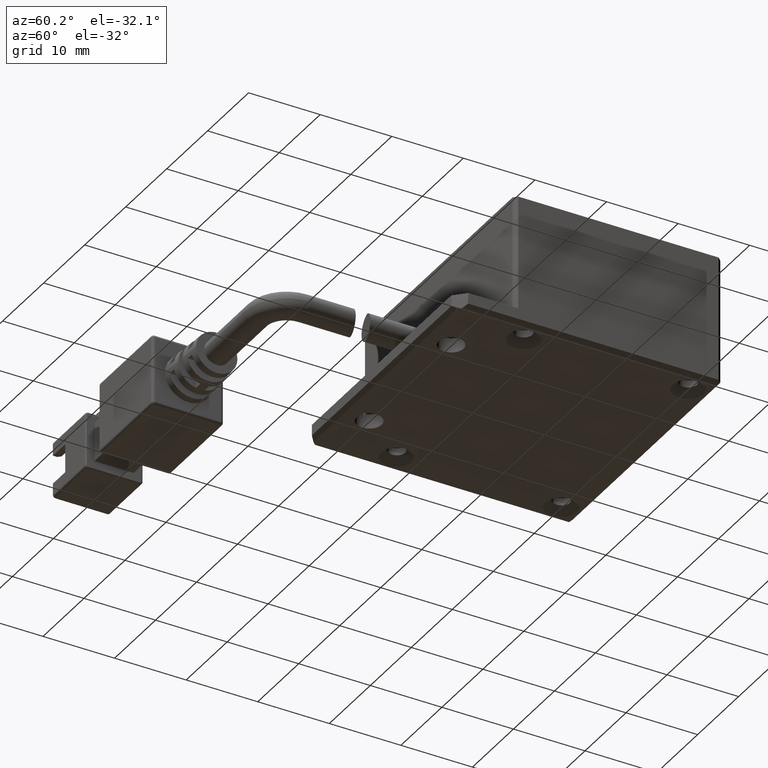
[diagram: clean part render]
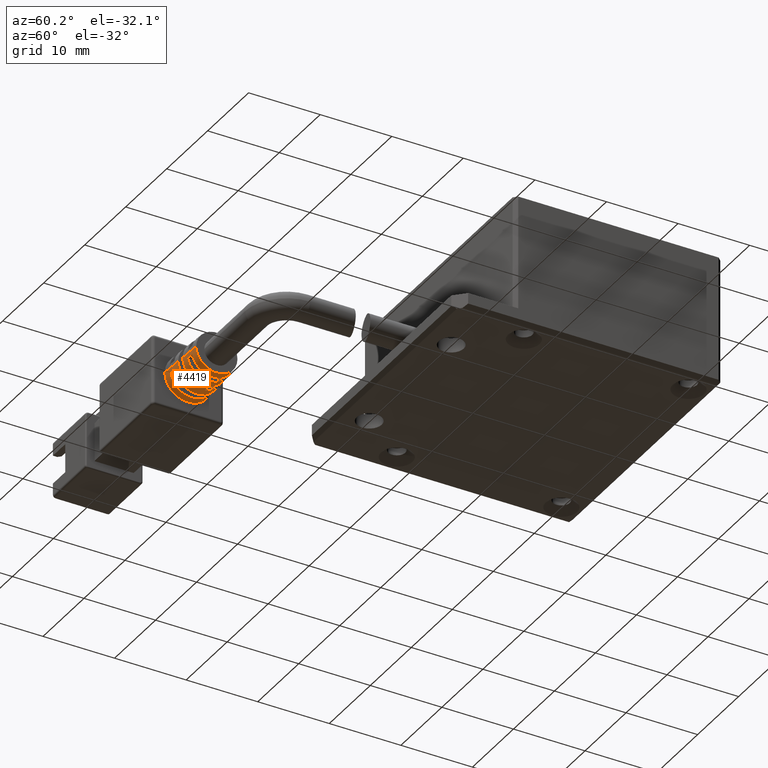
[diagram: same view with one face highlighted and labeled with its STEP entity id]
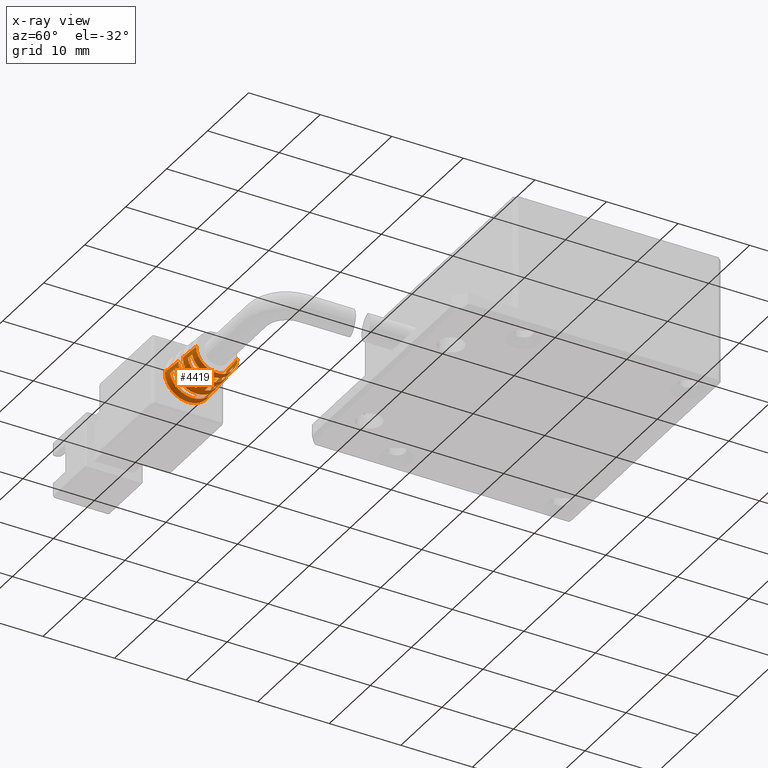
[diagram: x-ray of the same camera — body ghosted, the highlighted face saturated]
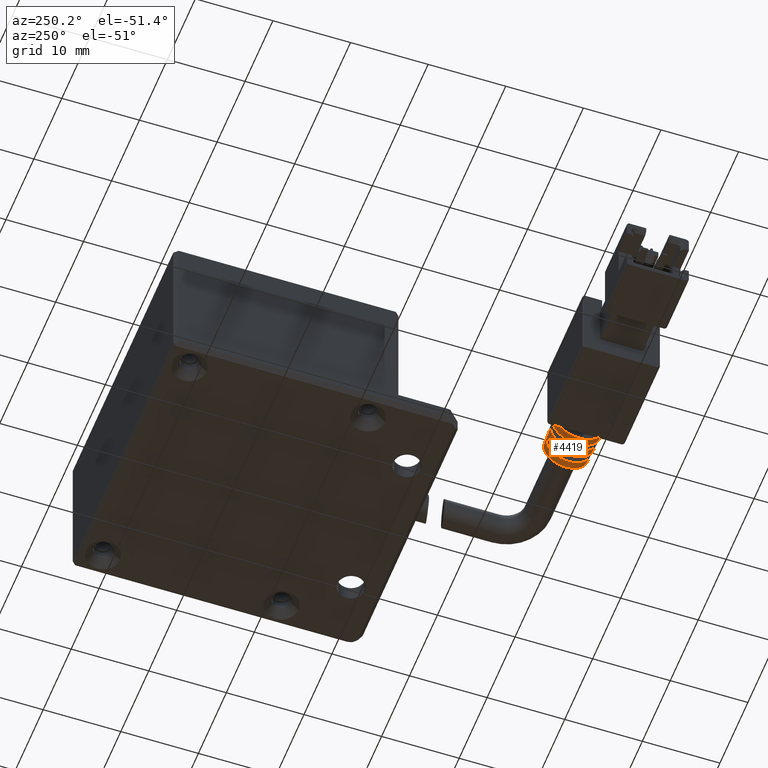
[diagram: same view with one face highlighted and labeled with its STEP entity id]
A machine part, auxiliary view. The second image highlights one B-rep face of the part: STEP entity #4419.
The next image is the same camera in x-ray: the body ghosted, the highlighted face saturated — about 0% of this face is hidden behind the body in this view.
A second angle (auxiliary view) of the same face is appended — the face is thin or edge-on in the first view.
In plain terms, the highlighted conical surface has half-angle 3 deg.
Its self-contained STEP definition (entity closure, byte-faithful):
#48 = EDGE_LOOP ( 'NONE', ( #3371, #6669, #3771, #10859, #6192, #203, #7342, #2516, #1070, #8255, #7962, #5312 ) ) ;
#57 = LINE ( 'NONE', #3148, #4552 ) ;
#81 = EDGE_CURVE ( 'NONE', #2783, #6234, #2177, .T. ) ;
#203 = ORIENTED_EDGE ( 'NONE', *, *, #7458, .T. ) ;
#393 = CARTESIAN_POINT ( 'NONE',  ( -0.6000000000000002000, -1.690931275294689500, -3.103923144125008800 ) ) ;
#410 = CIRCLE ( 'NONE', #9951, 2.987961103584793900 ) ;
#519 = DIRECTION ( 'NONE',  ( 0.0000000000000000000, 0.9986295347545739400, 0.05233595624294395300 ) ) ;
#543 = EDGE_CURVE ( 'NONE', #687, #1907, #410, .T. ) ;
#558 = DIRECTION ( 'NONE',  ( 0.0000000000000000000, 0.0000000000000000000, -1.000000000000000000 ) ) ;
#579 = CARTESIAN_POINT ( 'NONE',  ( -2.997303435743911700, -3.687103054800537000, 0.6000000000000006400 ) ) ;
#687 = VERTEX_POINT ( 'NONE', #10534 ) ;
#712 = CARTESIAN_POINT ( 'NONE',  ( 0.0000000000000000000, 0.0000000000000000000, 3.250000000000000400 ) ) ;
#833 = CARTESIAN_POINT ( 'NONE',  ( -0.6000000000000002000, -5.000000000000000000, -2.927099512578220900 ) ) ;
#911 = CARTESIAN_POINT ( 'NONE',  ( -0.6000000000000002000, -1.536396818379401500, 3.112171089127417500 ) ) ;
#1019 = CARTESIAN_POINT ( 'NONE',  ( -0.6000000000000002000, -5.000000000000000000, 2.927099512578220900 ) ) ;
#1024 = CARTESIAN_POINT ( 'NONE',  ( -0.6000000000000003100, -6.000000000000000000, -2.873581966782758500 ) ) ;
#1070 = ORIENTED_EDGE ( 'NONE', *, *, #10868, .F. ) ;
#1165 = VERTEX_POINT ( 'NONE', #9866 ) ;
#1206 = VERTEX_POINT ( 'NONE', #6579 ) ;
#1255 = B_SPLINE_CURVE_WITH_KNOTS ( 'NONE', 3,
 ( #8503, #2602, #5978, #911, #6848, #1778, #7698 ),
 .UNSPECIFIED., .F., .F.,
 ( 4, 3, 4 ),
 ( 0.005486545324036164000, 0.006023705354650140700, 0.006487968578879980600 ),
 .UNSPECIFIED. ) ;
#1263 = CARTESIAN_POINT ( 'NONE',  ( -0.6000000000000002000, -1.357597961866071600, -3.121714094386263600 ) ) ;
#1429 = CARTESIAN_POINT ( 'NONE',  ( -3.015117363918747200, -3.353769739830990900, 0.6000000000000006400 ) ) ;
#1458 = VERTEX_POINT ( 'NONE', #7526 ) ;
#1507 = AXIS2_PLACEMENT_3D ( 'NONE', #4265, #1597, #10188 ) ;
#1552 = CARTESIAN_POINT ( 'NONE',  ( -4.415348266194672500E-018, -1.000000000000000200, 0.0000000000000000000 ) ) ;
#1597 = DIRECTION ( 'NONE',  ( 0.0000000000000000000, -1.000000000000000000, 0.0000000000000000000 ) ) ;
#1704 = LINE ( 'NONE', #2802, #8446 ) ;
#1778 = CARTESIAN_POINT ( 'NONE',  ( -0.6000000000000002000, -1.845465669682622800, 3.095674027515319200 ) ) ;
#1810 = CIRCLE ( 'NONE', #9103, 3.092776662150876500 ) ;
#1887 = VERTEX_POINT ( 'NONE', #5246 ) ;
#1907 = VERTEX_POINT ( 'NONE', #1019 ) ;
#1968 = VERTEX_POINT ( 'NONE', #2039 ) ;
#1983 = DIRECTION ( 'NONE',  ( -0.0000000000000000000, 1.000000000000000000, 0.0000000000000000000 ) ) ;
#2039 = CARTESIAN_POINT ( 'NONE',  ( 0.0000000000000000000, 0.0000000000000000000, 3.250000000000000400 ) ) ;
#2125 = CARTESIAN_POINT ( 'NONE',  ( -0.6000000000000002000, -1.000000000000000200, -3.140795442239053600 ) ) ;
#2177 = CIRCLE ( 'NONE', #1507, 2.883145545018710900 ) ;
#2221 = CARTESIAN_POINT ( 'NONE',  ( 0.0000000000000000000, -4.000000000000000000, 0.0000000000000000000 ) ) ;
#2257 = CARTESIAN_POINT ( 'NONE',  ( -2.980577619172332300, -4.000000000000000000, 0.6000000000000007500 ) ) ;
#2301 = CARTESIAN_POINT ( 'NONE',  ( -3.034018372051348900, -3.000000000000000000, 0.6000000000000005300 ) ) ;
#2409 = DIRECTION ( 'NONE',  ( -1.000000000000000000, 0.0000000000000000000, 0.0000000000000000000 ) ) ;
#2430 = CARTESIAN_POINT ( 'NONE',  ( -3.034018372051348900, -3.000000000000000000, 0.6000000000000005300 ) ) ;
#2438 = B_SPLINE_CURVE_WITH_KNOTS ( 'NONE', 3,
 ( #9698, #3777, #393, #6329, #1263, #7193, #2125 ),
 .UNSPECIFIED., .F., .F.,
 ( 4, 3, 4 ),
 ( 0.005559442143658438000, 0.006023705366940987900, 0.006560865396458937700 ),
 .UNSPECIFIED. ) ;
#2516 = ORIENTED_EDGE ( 'NONE', *, *, #9761, .T. ) ;
#2521 = CARTESIAN_POINT ( 'NONE',  ( -0.6000000000000003100, -5.841634350319312200, -2.882060546900025800 ) ) ;
#2543 = CARTESIAN_POINT ( 'NONE',  ( -0.6000000000000002000, -2.000000000000000000, 3.087423710901693800 ) ) ;
#2567 = AXIS2_PLACEMENT_3D ( 'NONE', #8842, #3775, #9694 ) ;
#2602 = CARTESIAN_POINT ( 'NONE',  ( -0.6000000000000002000, -1.178799021637075400, 3.131255531260978700 ) ) ;
#2772 = CARTESIAN_POINT ( 'NONE',  ( -0.6000000000000003100, -5.524902802123364200, 2.899013058896424200 ) ) ;
#2783 = VERTEX_POINT ( 'NONE', #4578 ) ;
#2802 = CARTESIAN_POINT ( 'NONE',  ( 3.980102097228898200E-016, 0.0000000000000000000, -3.250000000000000400 ) ) ;
#2901 = EDGE_CURVE ( 'NONE', #10368, #1887, #10583, .T. ) ;
#2914 = EDGE_CURVE ( 'NONE', #2783, #10368, #3816, .T. ) ;
#3037 = CARTESIAN_POINT ( 'NONE',  ( -2.980577619172332300, -4.000000000000000000, -0.5999999999999994200 ) ) ;
#3061 = DIRECTION ( 'NONE',  ( 0.0000000000000000000, 0.0000000000000000000, -1.000000000000000000 ) ) ;
#3107 = CARTESIAN_POINT ( 'NONE',  ( -3.015117363918747200, -3.353769739830991800, -0.5999999999999994200 ) ) ;
#3148 = CARTESIAN_POINT ( 'NONE',  ( 3.980102097228898200E-016, 0.0000000000000000000, -3.250000000000000400 ) ) ;
#3196 = AXIS2_PLACEMENT_3D ( 'NONE', #2221, #8144, #3061 ) ;
#3255 = B_SPLINE_CURVE_WITH_KNOTS ( 'NONE', 3,
 ( #8435, #2521, #10137, #5065, #10985, #5913, #833 ),
 .UNSPECIFIED., .F., .F.,
 ( 4, 3, 4 ),
 ( 0.005150661850807968300, 0.005626439198702450800, 0.006152092883821650900 ),
 .UNSPECIFIED. ) ;
#3300 = ORIENTED_EDGE ( 'NONE', *, *, #5963, .T. ) ;
#3322 = EDGE_CURVE ( 'NONE', #10495, #7005, #4317, .T. ) ;
#3371 = ORIENTED_EDGE ( 'NONE', *, *, #4408, .F. ) ;
#3434 = CARTESIAN_POINT ( 'NONE',  ( -0.6000000000000002000, -2.000000000000000000, -3.087423710901693800 ) ) ;
#3435 = DIRECTION ( 'NONE',  ( 0.0000000000000000000, -1.000000000000000000, -0.0000000000000000000 ) ) ;
#3532 = VERTEX_POINT ( 'NONE', #4914 ) ;
#3596 = CARTESIAN_POINT ( 'NONE',  ( -0.6000000000000003100, -5.841634350319311300, 2.882060546900026700 ) ) ;
#3650 = ORIENTED_EDGE ( 'NONE', *, *, #7321, .T. ) ;
#3678 = CARTESIAN_POINT ( 'NONE',  ( 0.0000000000000000000, -5.000000000000000000, 0.0000000000000000000 ) ) ;
#3771 = ORIENTED_EDGE ( 'NONE', *, *, #2914, .T. ) ;
#3775 = DIRECTION ( 'NONE',  ( -0.0000000000000000000, -1.000000000000000000, -0.0000000000000000000 ) ) ;
#3777 = CARTESIAN_POINT ( 'NONE',  ( -0.6000000000000002000, -1.845465669682623500, -3.095674027515318700 ) ) ;
#3816 = LINE ( 'NONE', #5620, #8855 ) ;
#3841 = CARTESIAN_POINT ( 'NONE',  ( 0.0000000000000000000, -2.000000000000000000, 0.0000000000000000000 ) ) ;
#3956 = AXIS2_PLACEMENT_3D ( 'NONE', #8508, #3435, #9344 ) ;
#3973 = CARTESIAN_POINT ( 'NONE',  ( -3.034018372051348900, -3.000000000000000000, -0.5999999999999994200 ) ) ;
#3977 = DIRECTION ( 'NONE',  ( 0.0000000000000000000, 0.0000000000000000000, 1.000000000000000000 ) ) ;
#4111 = AXIS2_PLACEMENT_3D ( 'NONE', #10710, #5647, #558 ) ;
#4265 = CARTESIAN_POINT ( 'NONE',  ( 0.0000000000000000000, -7.000000000000000000, 0.0000000000000000000 ) ) ;
#4296 = ORIENTED_EDGE ( 'NONE', *, *, #9217, .T. ) ;
#4308 = FACE_OUTER_BOUND ( 'NONE', #48, .T. ) ;
#4317 = B_SPLINE_CURVE_WITH_KNOTS ( 'NONE', 3,
 ( #3973, #10721, #3107, #9908, #4829, #10765, #5689 ),
 .UNSPECIFIED., .F., .F.,
 ( 4, 3, 4 ),
 ( 0.005293660361915645400, 0.005825071804183215900, 0.006295087297245779600 ),
 .UNSPECIFIED. ) ;
#4380 = CARTESIAN_POINT ( 'NONE',  ( 4.377117530170101200E-032, -3.000000000000000000, 2.726534579772321200E-017 ) ) ;
#4396 = EDGE_CURVE ( 'NONE', #1887, #6552, #7293, .T. ) ;
#4408 = EDGE_CURVE ( 'NONE', #6234, #1458, #57, .T. ) ;
#4419 = ADVANCED_FACE ( 'NONE', ( #4308, #6827, #6543 ), #10508, .T. ) ;
#4427 = CARTESIAN_POINT ( 'NONE',  ( -0.6000000000000002000, -5.000000000000000000, 2.927099512578220900 ) ) ;
#4475 = EDGE_CURVE ( 'NONE', #5763, #3532, #10260, .T. ) ;
#4543 = DIRECTION ( 'NONE',  ( 0.0000000000000000000, 0.0000000000000000000, 1.000000000000000000 ) ) ;
#4552 = VECTOR ( 'NONE', #8218, 1000.000000000000100 ) ;
#4578 = CARTESIAN_POINT ( 'NONE',  ( 0.0000000000000000000, -7.000000000000000000, 2.883145545018710900 ) ) ;
#4696 = DIRECTION ( 'NONE',  ( 0.0000000000000000000, 0.0000000000000000000, -1.000000000000000000 ) ) ;
#4829 = CARTESIAN_POINT ( 'NONE',  ( -2.997303435743911700, -3.687103054800537000, -0.5999999999999994200 ) ) ;
#4883 = EDGE_CURVE ( 'NONE', #8547, #687, #3255, .T. ) ;
#4914 = CARTESIAN_POINT ( 'NONE',  ( -0.6000000000000002000, -1.000000000000000200, 3.140795442239053600 ) ) ;
#4920 = VECTOR ( 'NONE', #6646, 1000.000000000000100 ) ;
#4985 = AXIS2_PLACEMENT_3D ( 'NONE', #9876, #9046, #3977 ) ;
#5065 = CARTESIAN_POINT ( 'NONE',  ( -0.6000000000000003100, -5.524902802123367700, -2.899013058896424200 ) ) ;
#5133 = EDGE_CURVE ( 'NONE', #1907, #5210, #8182, .T. ) ;
#5210 = VERTEX_POINT ( 'NONE', #6212 ) ;
#5233 = DIRECTION ( 'NONE',  ( 0.0000000000000000000, 1.402237912299162600E-016, 1.000000000000000000 ) ) ;
#5246 = CARTESIAN_POINT ( 'NONE',  ( -2.980577619172332300, -4.000000000000000000, 0.6000000000000007500 ) ) ;
#5279 = CARTESIAN_POINT ( 'NONE',  ( -0.6000000000000002000, -5.174967698231296400, 2.917739184128639500 ) ) ;
#5312 = ORIENTED_EDGE ( 'NONE', *, *, #10694, .T. ) ;
#5424 = CARTESIAN_POINT ( 'NONE',  ( 0.0000000000000000000, -4.000000000000000000, 3.040368882867835200 ) ) ;
#5620 = CARTESIAN_POINT ( 'NONE',  ( 0.0000000000000000000, 0.0000000000000000000, 3.250000000000000400 ) ) ;
#5624 = ORIENTED_EDGE ( 'NONE', *, *, #4883, .T. ) ;
#5647 = DIRECTION ( 'NONE',  ( 0.0000000000000000000, -1.000000000000000000, 0.0000000000000000000 ) ) ;
#5689 = CARTESIAN_POINT ( 'NONE',  ( -2.980577619172332300, -4.000000000000000000, -0.5999999999999994200 ) ) ;
#5763 = VERTEX_POINT ( 'NONE', #6053 ) ;
#5913 = CARTESIAN_POINT ( 'NONE',  ( -0.6000000000000002000, -5.174967698231298200, -2.917739184128639500 ) ) ;
#5963 = EDGE_CURVE ( 'NONE', #7300, #5763, #2438, .T. ) ;
#5978 = CARTESIAN_POINT ( 'NONE',  ( -0.6000000000000002000, -1.357597961866071000, 3.121714094386263600 ) ) ;
#6053 = CARTESIAN_POINT ( 'NONE',  ( -0.6000000000000002000, -1.000000000000000200, -3.140795442239053600 ) ) ;
#6127 = ORIENTED_EDGE ( 'NONE', *, *, #543, .T. ) ;
#6192 = ORIENTED_EDGE ( 'NONE', *, *, #4396, .T. ) ;
#6212 = CARTESIAN_POINT ( 'NONE',  ( -0.6000000000000003100, -6.000000000000000000, 2.873581966782758500 ) ) ;
#6234 = VERTEX_POINT ( 'NONE', #6798 ) ;
#6329 = CARTESIAN_POINT ( 'NONE',  ( -0.6000000000000002000, -1.536396818379402600, -3.112171089127417500 ) ) ;
#6388 = EDGE_LOOP ( 'NONE', ( #5624, #6127, #10373, #9215 ) ) ;
#6491 = CARTESIAN_POINT ( 'NONE',  ( -3.005664327526035500, -3.530654474426556000, 0.6000000000000006400 ) ) ;
#6543 = FACE_BOUND ( 'NONE', #10461, .T. ) ;
#6552 = VERTEX_POINT ( 'NONE', #2430 ) ;
#6579 = CARTESIAN_POINT ( 'NONE',  ( 3.787559039780706000E-016, -3.000000000000000400, -3.092776662150876500 ) ) ;
#6646 = DIRECTION ( 'NONE',  ( 0.0000000000000000000, 0.9986295347545739400, 0.05233595624294395300 ) ) ;
#6669 = ORIENTED_EDGE ( 'NONE', *, *, #81, .F. ) ;
#6744 = EDGE_CURVE ( 'NONE', #1206, #10495, #1810, .T. ) ;
#6798 = CARTESIAN_POINT ( 'NONE',  ( 3.755468530206006500E-016, -7.000000000000000000, -2.883145545018710900 ) ) ;
#6827 = FACE_BOUND ( 'NONE', #6388, .T. ) ;
#6848 = CARTESIAN_POINT ( 'NONE',  ( -0.6000000000000002000, -1.690931275294688600, 3.103923144125008800 ) ) ;
#7005 = VERTEX_POINT ( 'NONE', #3037 ) ;
#7047 = CARTESIAN_POINT ( 'NONE',  ( 0.0000000000000000000, -3.000000000000000000, 0.0000000000000000000 ) ) ;
#7175 = LINE ( 'NONE', #712, #4920 ) ;
#7193 = CARTESIAN_POINT ( 'NONE',  ( -0.6000000000000002000, -1.178799021637075400, -3.131255531260978700 ) ) ;
#7254 = AXIS2_PLACEMENT_3D ( 'NONE', #1552, #7494, #2409 ) ;
#7293 = B_SPLINE_CURVE_WITH_KNOTS ( 'NONE', 3,
 ( #2257, #10724, #579, #6491, #1429, #7384, #2301 ),
 .UNSPECIFIED., .F., .F.,
 ( 4, 3, 4 ),
 ( 0.005355056325962925500, 0.005825071817917309600, 0.006356483258931942300 ),
 .UNSPECIFIED. ) ;
#7300 = VERTEX_POINT ( 'NONE', #3434 ) ;
#7321 = EDGE_CURVE ( 'NONE', #3532, #9034, #1255, .T. ) ;
#7342 = ORIENTED_EDGE ( 'NONE', *, *, #8035, .T. ) ;
#7384 = CARTESIAN_POINT ( 'NONE',  ( -3.024568696319368800, -3.176884914163264900, 0.6000000000000005300 ) ) ;
#7421 = ORIENTED_EDGE ( 'NONE', *, *, #4475, .T. ) ;
#7458 = EDGE_CURVE ( 'NONE', #6552, #7514, #9032, .T. ) ;
#7494 = DIRECTION ( 'NONE',  ( 2.634790741775504100E-017, 1.000000000000000000, -0.0000000000000000000 ) ) ;
#7514 = VERTEX_POINT ( 'NONE', #8813 ) ;
#7526 = CARTESIAN_POINT ( 'NONE',  ( 3.723378020631308100E-016, -4.000000000000000000, -3.040368882867835200 ) ) ;
#7698 = CARTESIAN_POINT ( 'NONE',  ( -0.6000000000000002000, -2.000000000000000000, 3.087423710901693800 ) ) ;
#7828 = CARTESIAN_POINT ( 'NONE',  ( -0.6000000000000003100, -5.349935299903075100, 2.908377050557863900 ) ) ;
#7876 = DIRECTION ( 'NONE',  ( 6.409306129323724800E-018, 0.9986295347545739400, -0.05233595624294395300 ) ) ;
#7907 = DIRECTION ( 'NONE',  ( 0.0000000000000000000, 0.0000000000000000000, 1.000000000000000000 ) ) ;
#7962 = ORIENTED_EDGE ( 'NONE', *, *, #3322, .T. ) ;
#8035 = EDGE_CURVE ( 'NONE', #7514, #1968, #7175, .T. ) ;
#8144 = DIRECTION ( 'NONE',  ( 0.0000000000000000000, -1.000000000000000000, 0.0000000000000000000 ) ) ;
#8182 = B_SPLINE_CURVE_WITH_KNOTS ( 'NONE', 3,
 ( #4427, #5279, #7828, #2772, #8673, #3596, #9517 ),
 .UNSPECIFIED., .F., .F.,
 ( 4, 3, 4 ),
 ( 0.005100785496724495800, 0.005626439183284157400, 0.006102216532482431100 ),
 .UNSPECIFIED. ) ;
#8218 = DIRECTION ( 'NONE',  ( 6.409306129323724800E-018, 0.9986295347545739400, -0.05233595624294395300 ) ) ;
#8255 = ORIENTED_EDGE ( 'NONE', *, *, #6744, .T. ) ;
#8435 = CARTESIAN_POINT ( 'NONE',  ( -0.6000000000000003100, -6.000000000000000000, -2.873581966782758500 ) ) ;
#8446 = VECTOR ( 'NONE', #7876, 1000.000000000000100 ) ;
#8488 = AXIS2_PLACEMENT_3D ( 'NONE', #7047, #1983, #7907 ) ;
#8503 = CARTESIAN_POINT ( 'NONE',  ( -0.6000000000000002000, -1.000000000000000200, 3.140795442239053600 ) ) ;
#8508 = CARTESIAN_POINT ( 'NONE',  ( 0.0000000000000000000, -4.000000000000000000, 0.0000000000000000000 ) ) ;
#8547 = VERTEX_POINT ( 'NONE', #1024 ) ;
#8673 = CARTESIAN_POINT ( 'NONE',  ( -0.6000000000000003100, -5.683268616951263400, 2.890537564014874900 ) ) ;
#8813 = CARTESIAN_POINT ( 'NONE',  ( 0.0000000000000000000, -3.000000000000000000, 3.092776662150876500 ) ) ;
#8842 = CARTESIAN_POINT ( 'NONE',  ( 0.0000000000000000000, 0.0000000000000000000, 0.0000000000000000000 ) ) ;
#8855 = VECTOR ( 'NONE', #519, 1000.000000000000100 ) ;
#9032 = CIRCLE ( 'NONE', #8488, 3.092776662150876500 ) ;
#9034 = VERTEX_POINT ( 'NONE', #2543 ) ;
#9046 = DIRECTION ( 'NONE',  ( 0.0000000000000000000, 1.000000000000000000, 0.0000000000000000000 ) ) ;
#9103 = AXIS2_PLACEMENT_3D ( 'NONE', #4380, #10301, #5233 ) ;
#9215 = ORIENTED_EDGE ( 'NONE', *, *, #9269, .T. ) ;
#9217 = EDGE_CURVE ( 'NONE', #9034, #7300, #10711, .T. ) ;
#9269 = EDGE_CURVE ( 'NONE', #5210, #8547, #10444, .T. ) ;
#9344 = DIRECTION ( 'NONE',  ( 0.0000000000000000000, 0.0000000000000000000, -1.000000000000000000 ) ) ;
#9517 = CARTESIAN_POINT ( 'NONE',  ( -0.6000000000000003100, -6.000000000000000000, 2.873581966782758500 ) ) ;
#9606 = DIRECTION ( 'NONE',  ( 0.0000000000000000000, 1.000000000000000000, -0.0000000000000000000 ) ) ;
#9694 = DIRECTION ( 'NONE',  ( 0.0000000000000000000, 0.0000000000000000000, 1.000000000000000000 ) ) ;
#9698 = CARTESIAN_POINT ( 'NONE',  ( -0.6000000000000002000, -2.000000000000000000, -3.087423710901693800 ) ) ;
#9761 = EDGE_CURVE ( 'NONE', #1968, #1165, #10435, .T. ) ;
#9775 = DIRECTION ( 'NONE',  ( 0.0000000000000000000, -1.000000000000000000, 0.0000000000000000000 ) ) ;
#9866 = CARTESIAN_POINT ( 'NONE',  ( 3.980102097228898200E-016, 0.0000000000000000000, -3.250000000000000400 ) ) ;
#9876 = CARTESIAN_POINT ( 'NONE',  ( 0.0000000000000000000, 0.0000000000000000000, 0.0000000000000000000 ) ) ;
#9908 = CARTESIAN_POINT ( 'NONE',  ( -3.005664327526035500, -3.530654474426556900, -0.5999999999999994200 ) ) ;
#9951 = AXIS2_PLACEMENT_3D ( 'NONE', #3678, #9606, #4543 ) ;
#10137 = CARTESIAN_POINT ( 'NONE',  ( -0.6000000000000003100, -5.683268616951266100, -2.890537564014874900 ) ) ;
#10188 = DIRECTION ( 'NONE',  ( 0.0000000000000000000, 0.0000000000000000000, -1.000000000000000000 ) ) ;
#10260 = CIRCLE ( 'NONE', #7254, 3.197592220716959100 ) ;
#10301 = DIRECTION ( 'NONE',  ( -1.459039176723367100E-032, 1.000000000000000000, -1.682157642908239300E-016 ) ) ;
#10303 = CIRCLE ( 'NONE', #3956, 3.040368882867835200 ) ;
#10368 = VERTEX_POINT ( 'NONE', #5424 ) ;
#10373 = ORIENTED_EDGE ( 'NONE', *, *, #5133, .T. ) ;
#10435 = CIRCLE ( 'NONE', #2567, 3.250000000000000400 ) ;
#10444 = CIRCLE ( 'NONE', #4111, 2.935553324301752200 ) ;
#10461 = EDGE_LOOP ( 'NONE', ( #3300, #7421, #3650, #4296 ) ) ;
#10495 = VERTEX_POINT ( 'NONE', #10719 ) ;
#10508 = CONICAL_SURFACE ( 'NONE', #4985, 3.250000000000000400, 0.05235987755983000100 ) ;
#10534 = CARTESIAN_POINT ( 'NONE',  ( -0.6000000000000002000, -5.000000000000000000, -2.927099512578220900 ) ) ;
#10548 = AXIS2_PLACEMENT_3D ( 'NONE', #3841, #9775, #4696 ) ;
#10583 = CIRCLE ( 'NONE', #3196, 3.040368882867835200 ) ;
#10694 = EDGE_CURVE ( 'NONE', #7005, #1458, #10303, .T. ) ;
#10710 = CARTESIAN_POINT ( 'NONE',  ( 0.0000000000000000000, -6.000000000000000000, 0.0000000000000000000 ) ) ;
#10711 = CIRCLE ( 'NONE', #10548, 3.145184441433917800 ) ;
#10719 = CARTESIAN_POINT ( 'NONE',  ( -3.034018372051348900, -3.000000000000000000, -0.5999999999999994200 ) ) ;
#10721 = CARTESIAN_POINT ( 'NONE',  ( -3.024568696319368800, -3.176884914163266200, -0.5999999999999994200 ) ) ;
#10724 = CARTESIAN_POINT ( 'NONE',  ( -2.988941210939148000, -3.843551563941393700, 0.6000000000000007500 ) ) ;
#10765 = CARTESIAN_POINT ( 'NONE',  ( -2.988941210939148400, -3.843551563941392900, -0.5999999999999994200 ) ) ;
#10859 = ORIENTED_EDGE ( 'NONE', *, *, #2901, .T. ) ;
#10868 = EDGE_CURVE ( 'NONE', #1206, #1165, #1704, .T. ) ;
#10985 = CARTESIAN_POINT ( 'NONE',  ( -0.6000000000000003100, -5.349935299903077800, -2.908377050557863900 ) ) ;